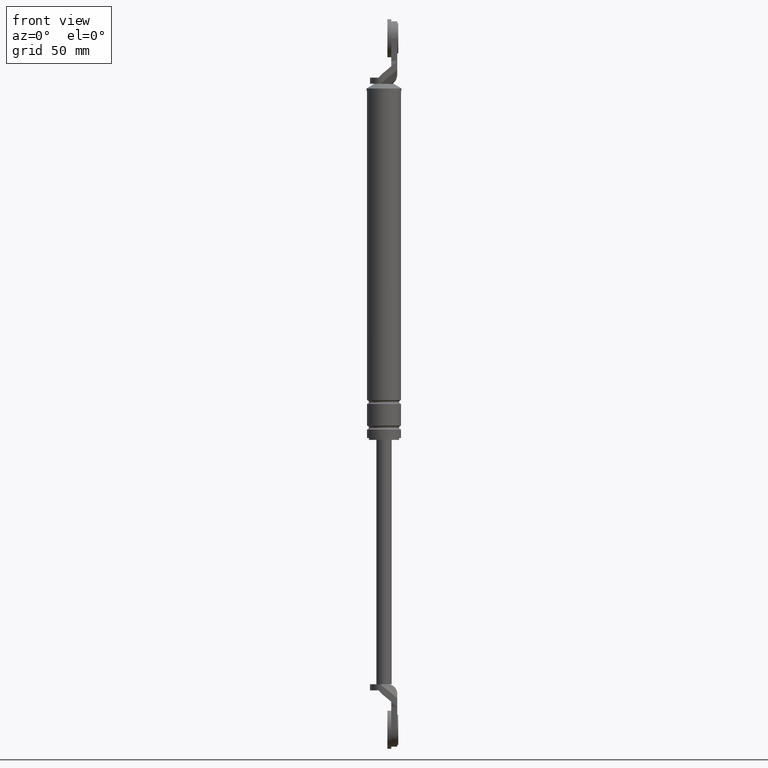
[diagram: clean part render]
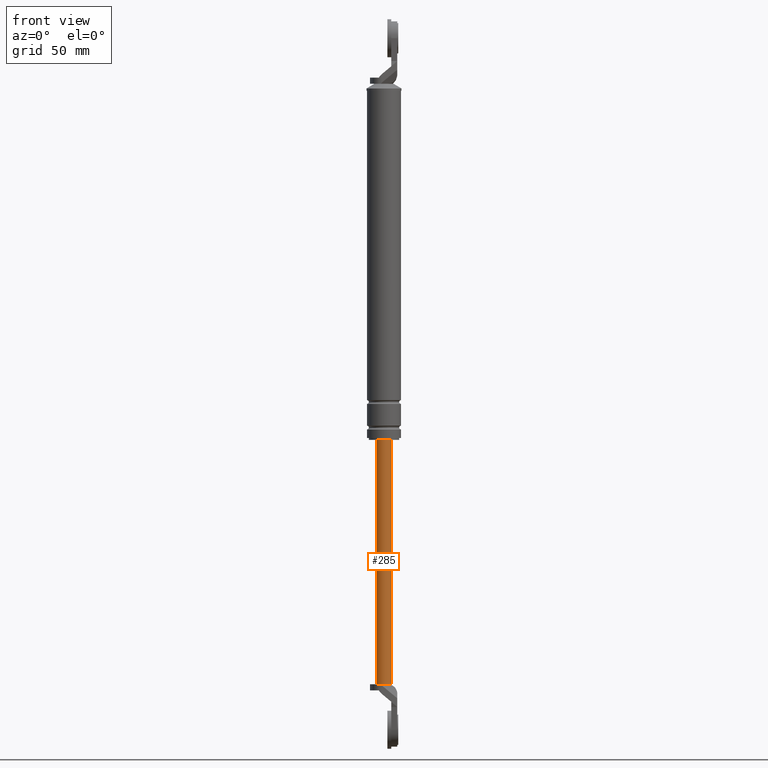
[diagram: same view with one face highlighted and labeled with its STEP entity id]
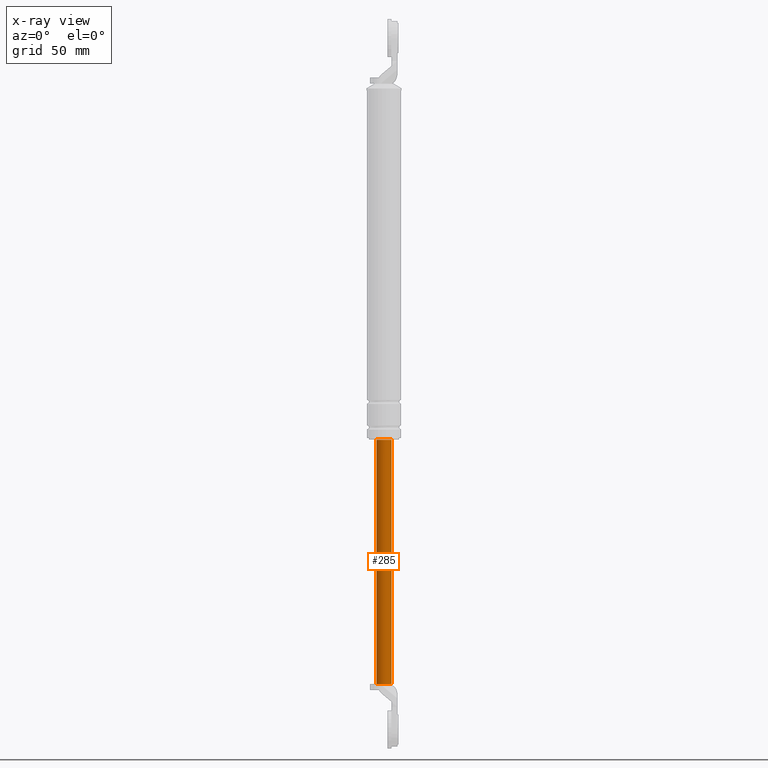
[diagram: x-ray of the same camera — body ghosted, the highlighted face saturated]
A machine part, front view. The second image highlights one B-rep face of the part: STEP entity #285.
The next image is the same camera in x-ray: the body ghosted, the highlighted face saturated — about 0% of this face is hidden behind the body in this view.
In plain terms, the highlighted cylindrical surface (edge-blend (fillet) strip) has radius 4 mm, axis along (0, 0, 1).
Its self-contained STEP definition (entity closure, byte-faithful):
#285=ADVANCED_FACE('',(#1107),#1106,.T.);
#1106=CYLINDRICAL_SURFACE('',#1760,4.00000000000E+000);
#1107=FACE_OUTER_BOUND('',#1761,.T.);
#1757=CARTESIAN_POINT('',(0.00000000000E+000,3.58204186421E-014,0.00000000000E+000));
#1758=DIRECTION('',(-0.00000000000E+000,-0.00000000000E+000,1.00000000000E+000));
#1759=DIRECTION('',(1.00000000000E+000,-0.00000000000E+000,-0.00000000000E+000));
#1760=AXIS2_PLACEMENT_3D('',#1757,#1758,#1759);
#1761=EDGE_LOOP('',(#2153,#2154,#2155,#2156,#2157));
#2153=ORIENTED_EDGE('',*,*,#2350,.F.);
#2154=ORIENTED_EDGE('',*,*,#2341,.F.);
#2155=ORIENTED_EDGE('',*,*,#2354,.T.);
#2156=ORIENTED_EDGE('',*,*,#2338,.F.);
#2157=ORIENTED_EDGE('',*,*,#2355,.F.);
#2338=EDGE_CURVE('',#3550,#3549,#3557,.T.);
#2341=EDGE_CURVE('',#3570,#3563,#3577,.T.);
#2350=EDGE_CURVE('',#3563,#3633,#3634,.T.);
#2354=EDGE_CURVE('',#3570,#3549,#3658,.T.);
#2355=EDGE_CURVE('',#3633,#3550,#3664,.T.);
#3549=VERTEX_POINT('',#4397);
#3550=VERTEX_POINT('',#4398);
#3557=CIRCLE('',#4406,4.00000000000E+000);
#3563=VERTEX_POINT('',#4407);
#3570=VERTEX_POINT('',#4411);
#3577=CIRCLE('',#4419,4.00000000000E+000);
#3633=VERTEX_POINT('',#4449);
#3634=CIRCLE('',#4453,4.00000000000E+000);
#3658=(BOUNDED_CURVE() B_SPLINE_CURVE(1,(#4462,#4463),.UNSPECIFIED.,.F.,.F.) B_SPLINE_CURVE_WITH_KNOTS((2,2),(6.71140940856E-002,9.32885905909E-001),.UNSPECIFIED.) CURVE() GEOMETRIC_REPRESENTATION_ITEM() RATIONAL_B_SPLINE_CURVE((1.00000000000E+000,1.00000000000E+000)) REPRESENTATION_ITEM('') );
#3664=(BOUNDED_CURVE() B_SPLINE_CURVE(1,(#4464,#4465),.UNSPECIFIED.,.F.,.F.) B_SPLINE_CURVE_WITH_KNOTS((2,2),(6.71140939597E-002,9.32885906040E-001),.UNSPECIFIED.) CURVE() GEOMETRIC_REPRESENTATION_ITEM() RATIONAL_B_SPLINE_CURVE((7.50000000000E-001,7.50000000000E-001)) REPRESENTATION_ITEM('') );
#4397=CARTESIAN_POINT('',(4.00000000000E+000,3.58204186421E-014,-9.90000150000E+001));
#4398=CARTESIAN_POINT('',(-4.00000000000E+000,3.64153152077E-014,-9.90000150000E+001));
#4403=CARTESIAN_POINT('',(0.00000000000E+000,3.58204186421E-014,-9.90000150000E+001));
#4404=DIRECTION('',(0.00000000000E+000,0.00000000000E+000,1.00000000000E+000));
#4405=DIRECTION('',(1.00000000000E+000,-1.22460635382E-016,0.00000000000E+000));
#4406=AXIS2_PLACEMENT_3D('',#4403,#4404,#4405);
#4407=CARTESIAN_POINT('',(2.00000000000E+000,-3.46410161514E+000,-2.28000015000E+002));
#4411=CARTESIAN_POINT('',(4.00000000000E+000,3.64153152077E-014,-2.28000015000E+002));
#4416=CARTESIAN_POINT('',(0.00000000000E+000,3.58204186421E-014,-2.28000015000E+002));
#4417=DIRECTION('',(0.00000000000E+000,0.00000000000E+000,-1.00000000000E+000));
#4418=DIRECTION('',(5.00000000000E-001,8.66025403784E-001,0.00000000000E+000));
#4419=AXIS2_PLACEMENT_3D('',#4416,#4417,#4418);
#4449=CARTESIAN_POINT('',(-4.00000000000E+000,3.82218919576E-014,-2.28000015000E+002));
#4450=CARTESIAN_POINT('',(0.00000000000E+000,3.58204186421E-014,-2.28000015000E+002));
#4451=DIRECTION('',(0.00000000000E+000,0.00000000000E+000,-1.00000000000E+000));
#4452=DIRECTION('',(1.00000000000E+000,-0.00000000000E+000,-0.00000000000E+000));
#4453=AXIS2_PLACEMENT_3D('',#4450,#4451,#4452);
#4462=CARTESIAN_POINT('',(4.00000000000E+000,3.58204186421E-014,-2.28000014981E+002));
#4463=CARTESIAN_POINT('',(4.00000000000E+000,3.58204186421E-014,-9.90000150196E+001));
#4464=CARTESIAN_POINT('',(-4.00000000000E+000,3.58231962612E-014,-2.28000015000E+002));
#4465=CARTESIAN_POINT('',(-4.00000000000E+000,3.58231962612E-014,-9.90000150000E+001));